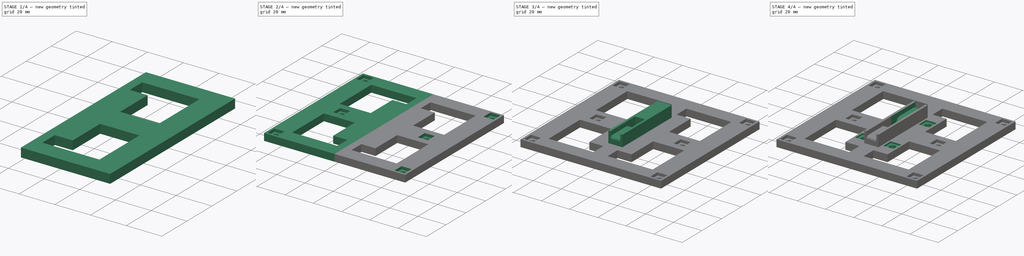
[diagram: build sequence overview — one tinted view per stage of 4, left to right]
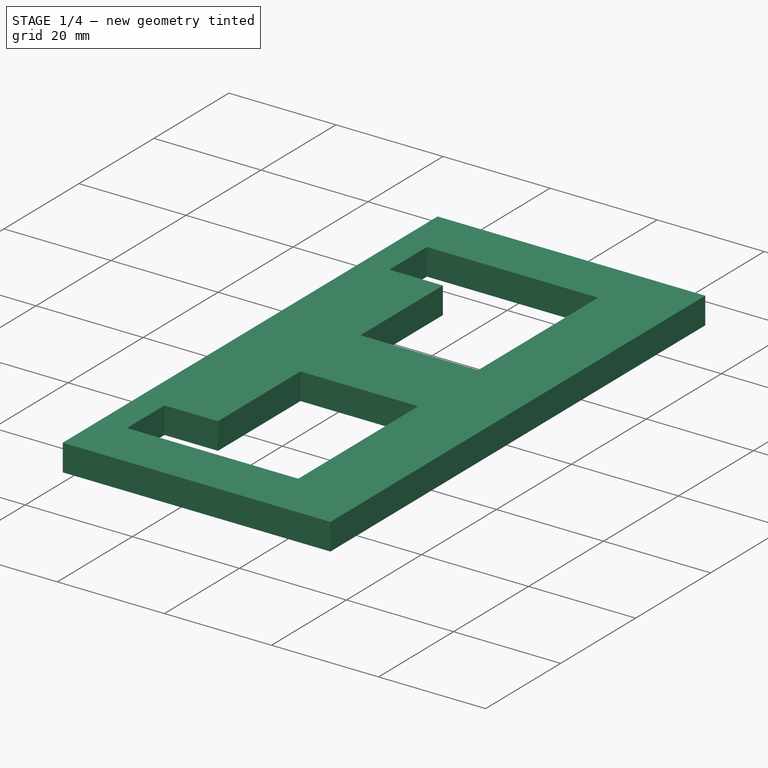
[diagram: stage 1 of 4 — iso view after this stage's code; geometry added in this stage tinted green]
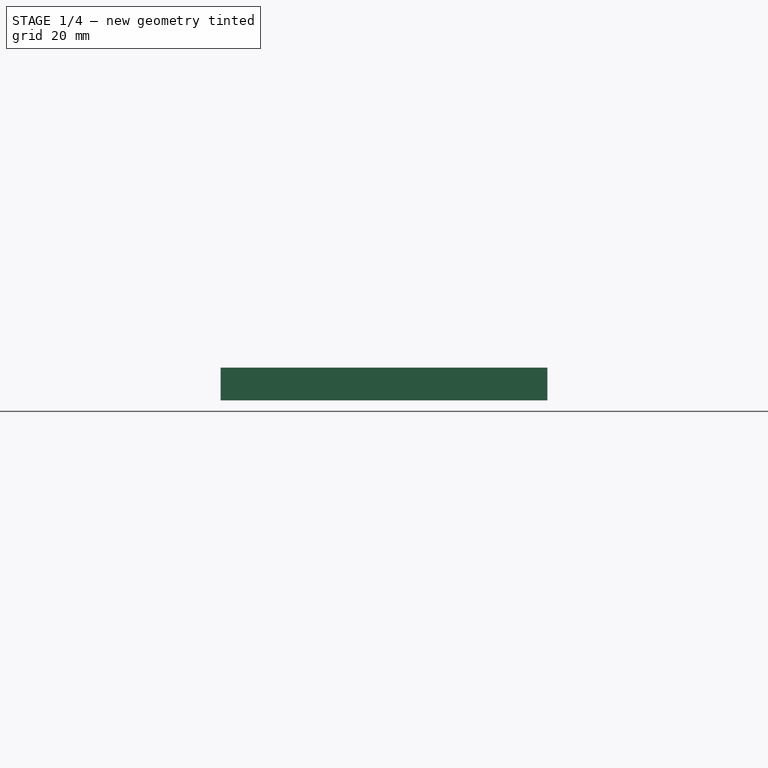
[diagram: stage 1 of 4 — front view after this stage's code; geometry added in this stage tinted green]
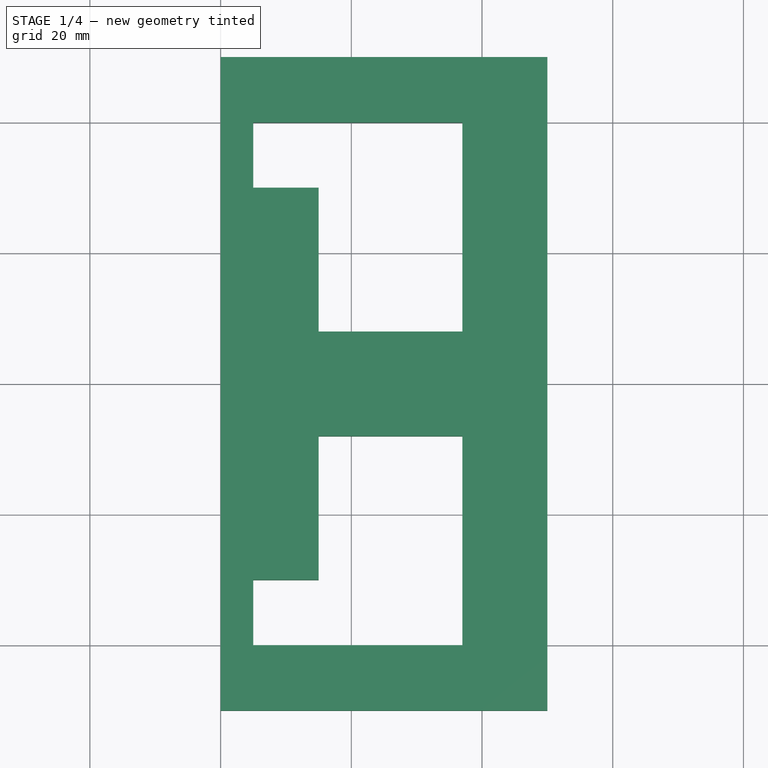
[diagram: stage 1 of 4 — top view after this stage's code; geometry added in this stage tinted green]
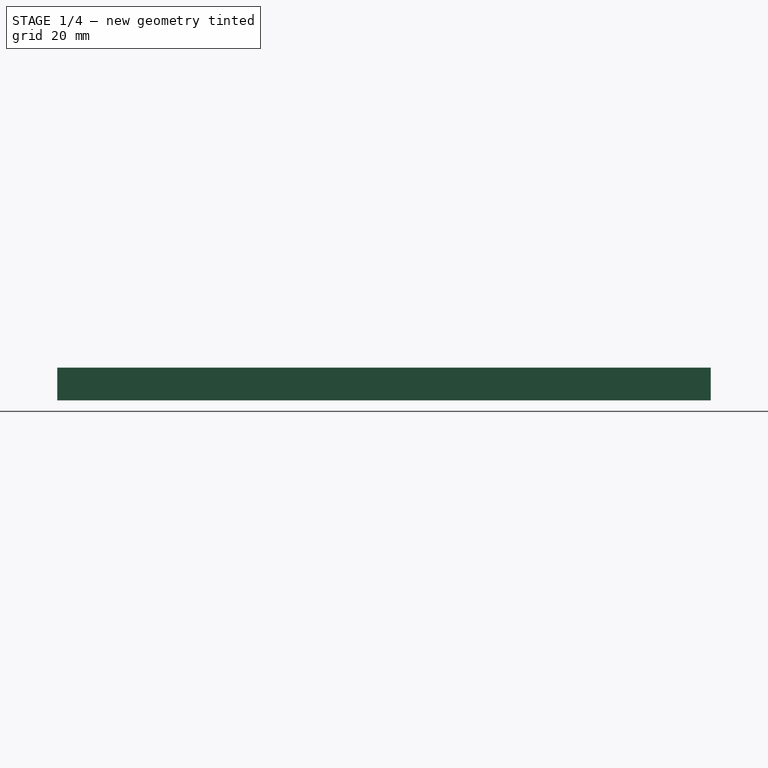
[diagram: stage 1 of 4 — right view after this stage's code; geometry added in this stage tinted green]
FCSTD DOCUMENT  (FreeCAD 2023.521R14555 (Git shallow))
Label: Y_Bed_Struct
License: All rights reserved
objects: Sketcher::SketchObject×8, PartDesign::Pocket×6, PartDesign::Mirrored×3, PartDesign::Pad×2, PartDesign::CoordinateSystem×1, Part::SubShapeBinder×1, PartDesign::Body×1, App::Part×1
note: 52 computed .brp shape members not serialized (recipe doc carries the construction recipe); baked Part::Feature solids carry a one-line shape summary decoded from their .brp

FEATURE [PartDesign::CoordinateSystem] LCS_0
  AttacherType = Attacher::AttachEngine3D
  AttachmentSupport = -> [X_Axis]
  InvalidShape = false
  MapMode = 2
  Support = -> [X_Axis]
  TreeRank = 3
  ValidateShape = false
FEATURE [Sketcher::SketchObject] Sketch
  ArcFitTolerance = 1e-06
  AttachmentSupport = -> [XZ_Plane001]
  ExternalBSplineMaxDegree = 5
  ExternalBSplineTolerance = 0.0001
  FullyConstrained = true
  InternalTolerance = 1e-06
  InvalidShape = false
  MakeInternals = false
  MapMode = 5
  Placement = pos=(0,0,0) rot=(1,0,0;1.5708rad)
  Support = -> [XZ_Plane001]
  TreeRank = 23
  ValidateShape = false
  sketch-geometry (4):
    g0: LineSegment StartX=0 StartY=0 StartZ=0 EndX=50 EndY=0 EndZ=0
    g1: LineSegment StartX=50 StartY=0 StartZ=0 EndX=50 EndY=5 EndZ=0
    g2: LineSegment StartX=50 StartY=5 StartZ=0 EndX=0 EndY=5 EndZ=0
    g3: LineSegment StartX=0 StartY=5 StartZ=0 EndX=0 EndY=0 EndZ=0
  constraints (11):
    c: Coincident(g0,g1)
    c: Coincident(g1,g2)
    c: Coincident(g2,g3)
    c: Coincident(g3,g0)
    c: Horizontal(g0)
    c: Horizontal(g2)
    c: Vertical(g1)
    c: Vertical(g3)
    c: Coincident(g0,g-1)
    c: DistanceY(g1,g1) = 5
    c: DistanceX(g0,g0) = 50
FEATURE [PartDesign::Pad] Pad
  AddSubType = 0
  AlongSketchNormal = false
  AutoTaperInnerAngle = true
  CheckUpToFaceLimits = true
  ClaimChildren = false
  Direction = (0,-1,2e-16)
  Fit = 0
  FitJoin = 0
  InnerFit = 0
  InnerFitJoin = 0
  InvalidShape = false
  Length = 100
  Length2 = 10
  Linearize = true
  Midplane = true
  NewSolid = false
  Profile = -> Sketch
  ReferenceAxis = -> Sketch [N_Axis]
  Suppress = false
  TaperInnerAngle = 0
  TaperInnerAngleRev = 0
  TreeRank = 24
  Type = 0
  ValidateShape = true
  _ProfileBasedVersion = 1
FEATURE [Sketcher::SketchObject] Sketch001
  ArcFitTolerance = 1e-06
  AttachmentSupport = -> [Pad]
  ExternalBSplineMaxDegree = 5
  ExternalBSplineTolerance = 0.0001
  FullyConstrained = true
  InternalTolerance = 1e-06
  InvalidShape = false
  MakeInternals = false
  MapMode = 5
  Placement = pos=(0,1.1e-15,5) rot=(0,0,1;0rad)
  Support = -> [Pad]
  TreeRank = 25
  ValidateShape = false
  sketch-geometry (6):
    g0: LineSegment StartX=5 StartY=30 StartZ=0 EndX=5 EndY=40 EndZ=0
    g1: LineSegment StartX=5 StartY=40 StartZ=0 EndX=37 EndY=40 EndZ=0
    g2: LineSegment StartX=37 StartY=40 StartZ=0 EndX=37 EndY=8 EndZ=0
    g3: LineSegment StartX=5 StartY=30 StartZ=0 EndX=15 EndY=30 EndZ=0
    g4: LineSegment StartX=15 StartY=30 StartZ=0 EndX=15 EndY=8 EndZ=0
    g5: LineSegment StartX=15 StartY=8 StartZ=0 EndX=37 EndY=8 EndZ=0
  constraints (18):
    c: Coincident(g0,g1)
    c: Coincident(g1,g2)
    c: Horizontal(g1)
    c: Vertical(g0)
    c: Vertical(g2)
    c: DistanceY(g-1,g0) = 30
    c: Coincident(g3,g0)
    c: Horizontal(g3)
    c: Vertical(g4)
    c: Coincident(g5,g4)
    c: Horizontal(g5)
    c: Coincident(g2,g5)
    c: Coincident(g3,g4)
    c: DistanceX(g-1,g3) = 15
    c: DistanceY(g-1,g4) = 8
    c: DistanceY(g0,g0) = 10
    c: DistanceX(g3,g3) = 10
    c: DistanceX(g1,g1) = 32
FEATURE [PartDesign::Pocket] Pocket
  AddSubType = 1
  AlongSketchNormal = false
  AutoTaperInnerAngle = true
  BaseFeature = -> Pad
  CheckUpToFaceLimits = true
  ClaimChildren = false
  Direction = (0,-2e-16,-1)
  Fit = 0
  FitJoin = 0
  InnerFit = 0
  InnerFitJoin = 0
  InvalidShape = false
  Length = 5
  Length2 = 10
  Linearize = true
  Midplane = true
  NewSolid = false
  Profile = -> Sketch001
  ReferenceAxis = -> Sketch001 [N_Axis]
  Suppress = false
  TaperInnerAngle = 0
  TaperInnerAngleRev = 0
  TreeRank = 26
  Type = 1
  ValidateShape = true
  _ProfileBasedVersion = 1
  _Version = 1
FEATURE [PartDesign::Mirrored] Mirrored
  AddSubType = 0
  BaseFeature = -> Pocket
  CopyShape = false
  InvalidShape = false
  MirrorPlane = -> XZ_Plane001
  NewSolid = false
  OriginalSubs = -> [Pocket]
  Originals = -> [Pocket]
  ParallelTransform = true
  SubTransform = true
  Suppress = false
  TreeRank = 27
  ValidateShape = true
  _Version = 3
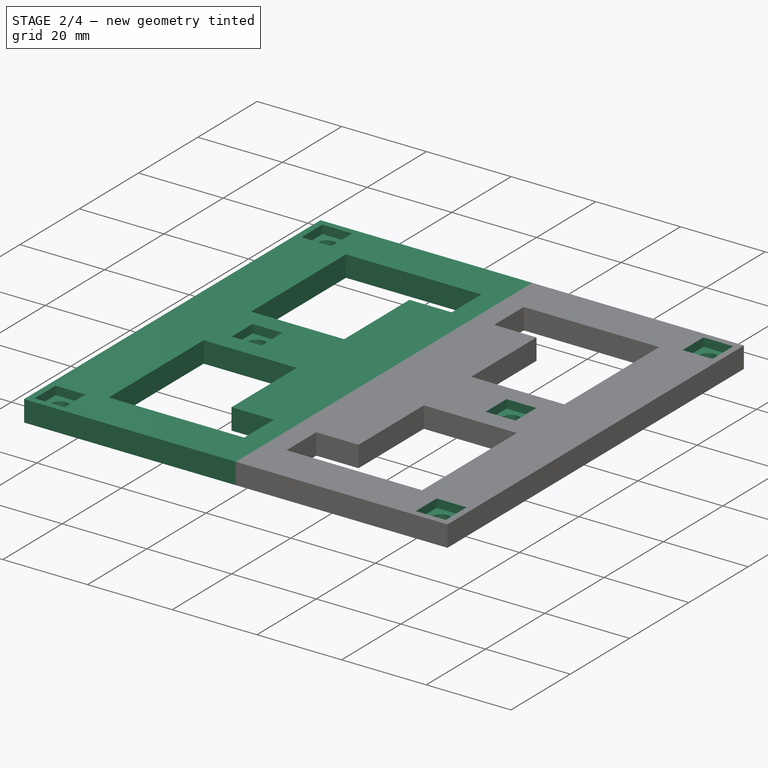
[diagram: stage 2 of 4 — iso view after this stage's code; geometry added in this stage tinted green]
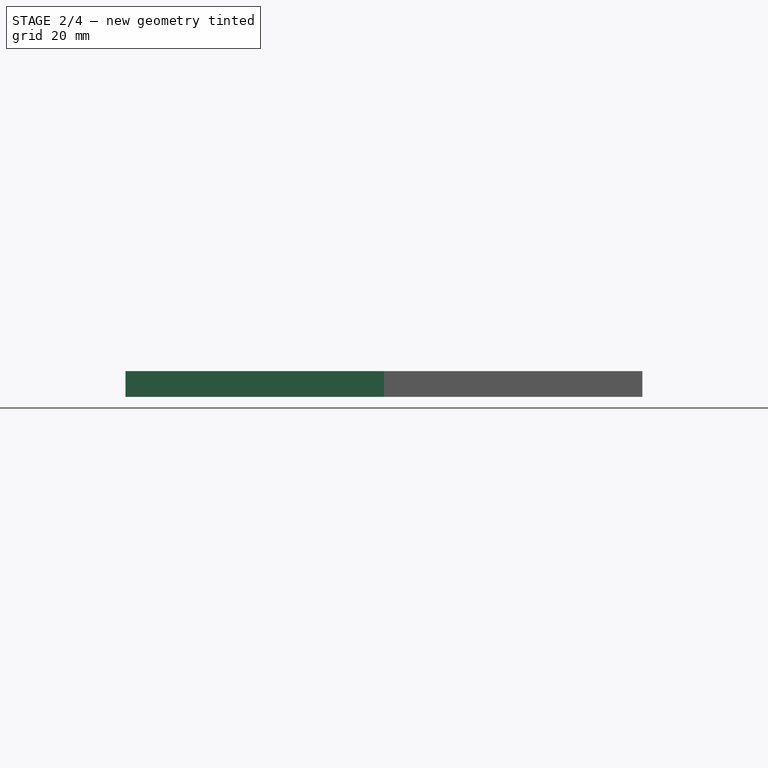
[diagram: stage 2 of 4 — front view after this stage's code; geometry added in this stage tinted green]
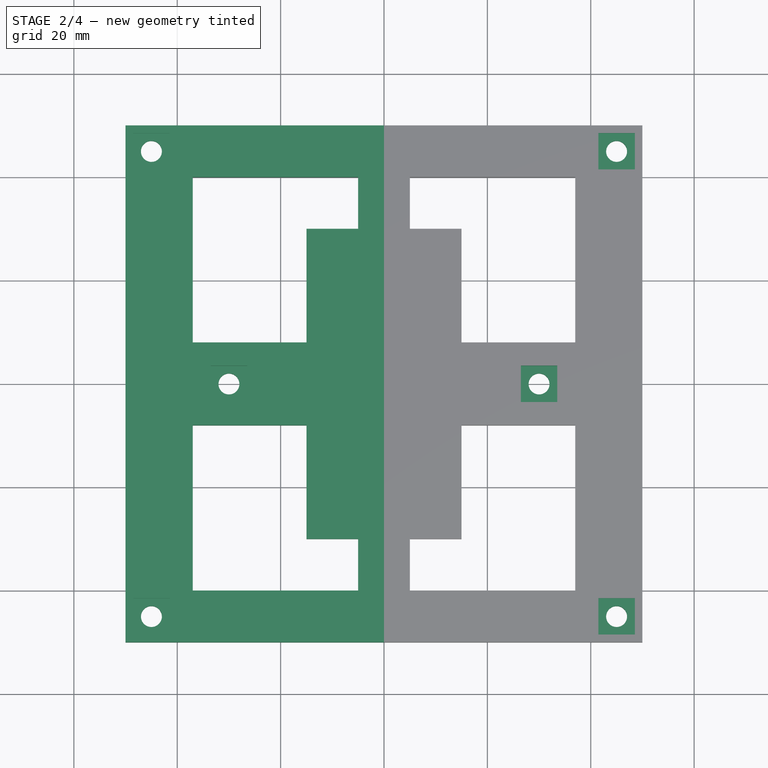
[diagram: stage 2 of 4 — top view after this stage's code; geometry added in this stage tinted green]
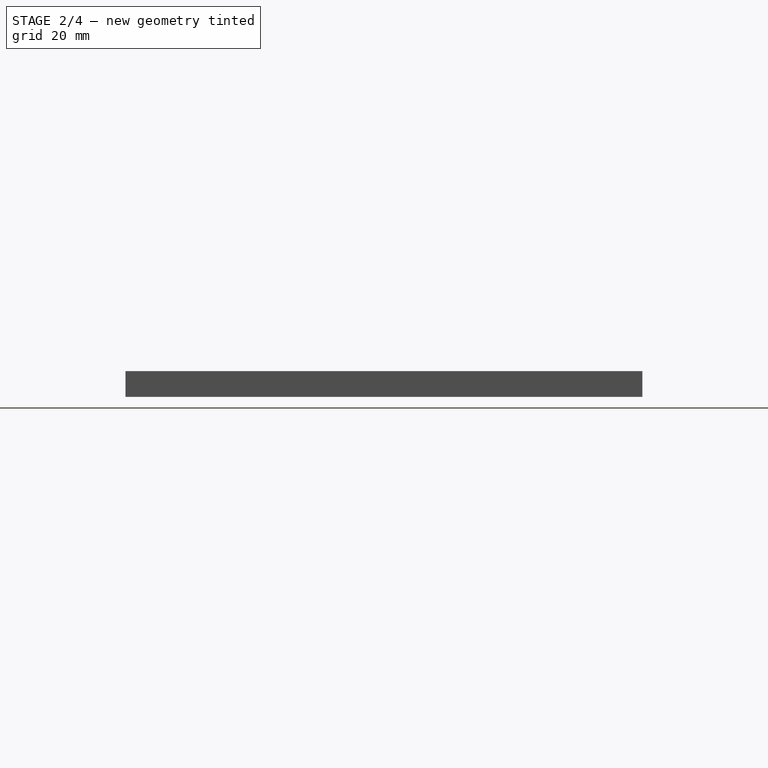
[diagram: stage 2 of 4 — right view after this stage's code; geometry added in this stage tinted green]
FEATURE [Sketcher::SketchObject] Sketch002
  ArcFitTolerance = 1e-06
  AttachmentSupport = -> [Mirrored]
  ExternalBSplineMaxDegree = 5
  ExternalBSplineTolerance = 0.0001
  FullyConstrained = true
  InternalTolerance = 1e-06
  InvalidShape = false
  MakeInternals = false
  MapMode = 5
  Placement = pos=(0,1.1e-15,5) rot=(0,0,1;0rad)
  Support = -> [Mirrored]
  TreeRank = 28
  ValidateShape = false
  sketch-geometry (3):
    g0: Circle CenterX=45 CenterY=45 CenterZ=0 NormalX=0 NormalY=0 NormalZ=1 AngleXU=0 Radius=2.025
    g1: Circle CenterX=30 CenterY=0 CenterZ=0 NormalX=0 NormalY=0 NormalZ=1 AngleXU=0 Radius=2.025
    g2: Circle CenterX=45 CenterY=-45 CenterZ=0 NormalX=0 NormalY=0 NormalZ=1 AngleXU=0 Radius=2.025
  constraints (8):
    c: Symmetric(g2,g0,g-1)
    c: DistanceX(g-1,g2) = 45
    c: DistanceX(g-1,g1) = 30
    c: Horizontal(g1,g-1)
    c: Equal(g0,g1)
    c: Equal(g1,g2)
    c: Diameter(g1) = 4.05
    c: DistanceY(g2,g0) = 90
FEATURE [PartDesign::Pocket] Pocket001
  AddSubType = 1
  AlongSketchNormal = false
  AutoTaperInnerAngle = true
  BaseFeature = -> Mirrored
  CheckUpToFaceLimits = true
  ClaimChildren = false
  Direction = (0,-2e-16,-1)
  Fit = 0
  FitJoin = 0
  InnerFit = 0
  InnerFitJoin = 0
  InvalidShape = false
  Length = 5
  Length2 = 10
  Linearize = true
  Midplane = true
  NewSolid = false
  Profile = -> Sketch002
  ReferenceAxis = -> Sketch002 [N_Axis]
  Suppress = false
  TaperInnerAngle = 0
  TaperInnerAngleRev = 0
  TreeRank = 29
  Type = 1
  ValidateShape = true
  _ProfileBasedVersion = 1
  _Version = 1
FEATURE [Sketcher::SketchObject] Sketch004
  ArcFitTolerance = 1e-06
  AttachmentSupport = -> [Pocket001]
  ExternalBSplineMaxDegree = 5
  ExternalBSplineTolerance = 0.0001
  ExternalGeometry = -> [Pocket001]
  FullyConstrained = true
  InternalTolerance = 1e-06
  InvalidShape = false
  MakeInternals = false
  MapMode = 5
  Placement = pos=(0,1.1e-15,5) rot=(0,0,1;0rad)
  Support = -> [Pocket001]
  TreeRank = 33
  ValidateShape = false
  sketch-geometry (15):
    g0: LineSegment StartX=26.475 StartY=-3.525 StartZ=0 EndX=26.475 EndY=3.525 EndZ=0
    g1: LineSegment StartX=26.475 StartY=3.525 StartZ=0 EndX=33.525 EndY=3.525 EndZ=0
    g2: LineSegment StartX=33.525 StartY=3.525 StartZ=0 EndX=33.525 EndY=-3.525 EndZ=0
    g3: LineSegment StartX=33.525 StartY=-3.525 StartZ=0 EndX=26.475 EndY=-3.525 EndZ=0
    g4: GeomPoint [constr] X=30 Y=0 Z=0
    g5: LineSegment StartX=41.475 StartY=-48.525 StartZ=0 EndX=41.475 EndY=-41.475 EndZ=0
    g6: LineSegment StartX=41.475 StartY=-41.475 StartZ=0 EndX=48.525 EndY=-41.475 EndZ=0
    g7: LineSegment StartX=48.525 StartY=-41.475 StartZ=0 EndX=48.525 EndY=-48.525 EndZ=0
    g8: LineSegment StartX=48.525 StartY=-48.525 StartZ=0 EndX=41.475 EndY=-48.525 EndZ=0
    g9: GeomPoint [constr] X=45 Y=-45 Z=0
    g10: LineSegment StartX=41.475 StartY=48.525 StartZ=0 EndX=41.475 EndY=41.475 EndZ=0
    g11: LineSegment StartX=41.475 StartY=41.475 StartZ=0 EndX=48.525 EndY=41.475 EndZ=0
    g12: LineSegment StartX=48.525 StartY=41.475 StartZ=0 EndX=48.525 EndY=48.525 EndZ=0
    g13: LineSegment StartX=48.525 StartY=48.525 StartZ=0 EndX=41.475 EndY=48.525 EndZ=0
    g14: GeomPoint [constr] X=45 Y=45 Z=0
  constraints (36):
    c: Coincident(g0,g1)
    c: Coincident(g1,g2)
    c: Coincident(g2,g3)
    c: Coincident(g3,g0)
    c: Horizontal(g1)
    c: Horizontal(g3)
    c: Vertical(g0)
    c: Vertical(g2)
    c: Symmetric(g1,g0,g4)
    c: Coincident(g5,g6)
    c: Coincident(g6,g7)
    c: Coincident(g7,g8)
    c: Coincident(g8,g5)
    c: Horizontal(g6)
    c: Horizontal(g8)
    c: Vertical(g5)
    c: Vertical(g7)
    c: Symmetric(g6,g5,g9)
    c: Coincident(g10,g11)
    c: Coincident(g11,g12)
    c: Coincident(g12,g13)
    c: Coincident(g13,g10)
    c: Horizontal(g11)
    c: Horizontal(g13)
    c: Vertical(g10)
    c: Vertical(g12)
    c: Symmetric(g11,g10,g14)
    c: Coincident(g9,g-5)
    c: Coincident(g4,g-4)
    c: Coincident(g14,g-3)
    c: Equal(g11,g12)
    c: Equal(g12,g2)
    c: Equal(g2,g3)
    c: Equal(g3,g7)
    c: Equal(g7,g6)
    c: DistanceX(g6,g6) = 7.05
FEATURE [PartDesign::Pocket] Pocket003
  AddSubType = 1
  AlongSketchNormal = false
  AutoTaperInnerAngle = true
  BaseFeature = -> Pocket001
  CheckUpToFaceLimits = true
  ClaimChildren = false
  Direction = (0,-2e-16,-1)
  Fit = 0
  FitJoin = 0
  InnerFit = 0
  InnerFitJoin = 0
  InvalidShape = false
  Length = 2
  Length2 = 10
  Linearize = true
  NewSolid = false
  Profile = -> Sketch004
  ReferenceAxis = -> Sketch004 [N_Axis]
  Suppress = false
  TaperInnerAngle = 0
  TaperInnerAngleRev = 0
  TreeRank = 34
  Type = 0
  ValidateShape = true
  _ProfileBasedVersion = 1
  _Version = 1
FEATURE [PartDesign::Mirrored] Mirrored001
  AddSubType = 0
  BaseFeature = -> Pocket003
  CopyShape = false
  InvalidShape = false
  MirrorPlane = -> YZ_Plane001
  NewSolid = false
  OriginalSubs = -> [Pocket001,Mirrored,Pocket,Pad,Pocket003]
  Originals = -> [Pocket001,Mirrored,Pocket,Pad,Pocket003]
  ParallelTransform = true
  SubTransform = true
  Suppress = false
  TreeRank = 30
  ValidateShape = true
  _Version = 3
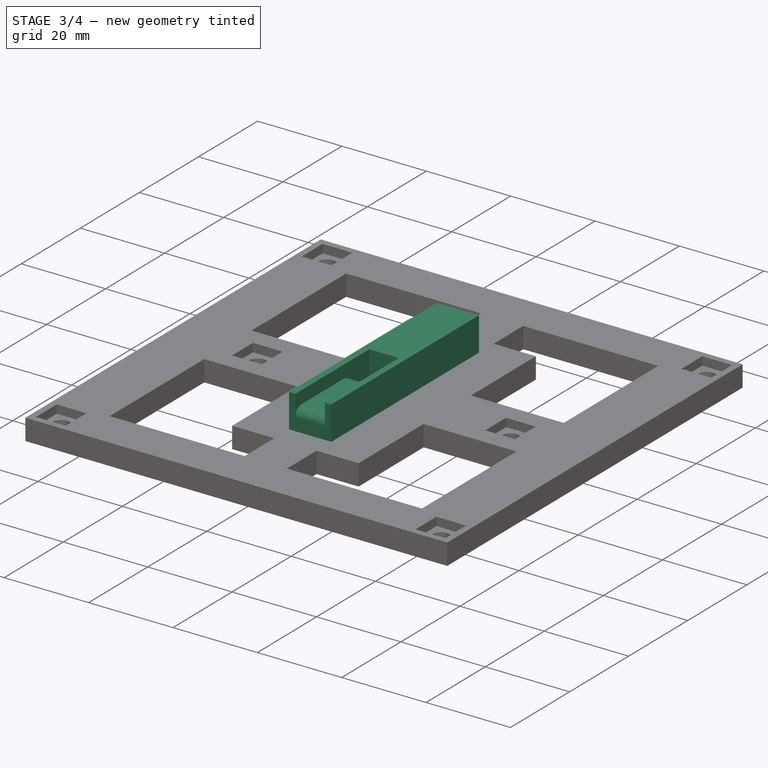
[diagram: stage 3 of 4 — iso view after this stage's code; geometry added in this stage tinted green]
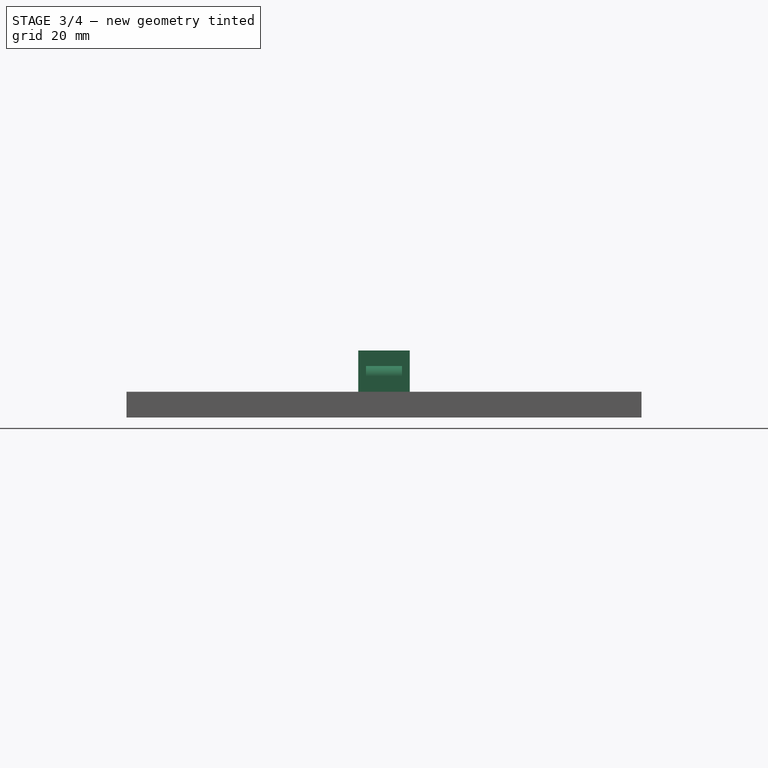
[diagram: stage 3 of 4 — front view after this stage's code; geometry added in this stage tinted green]
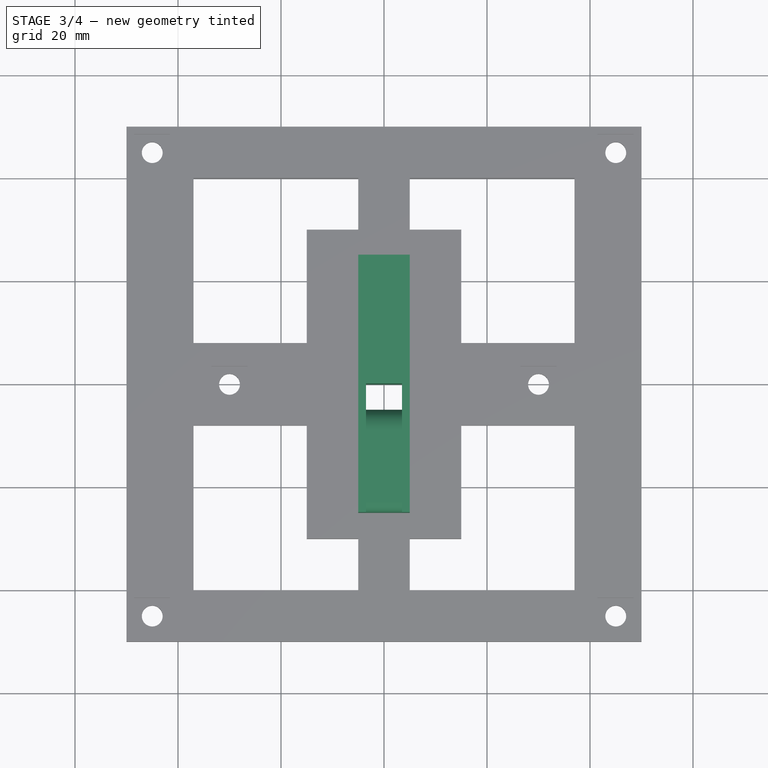
[diagram: stage 3 of 4 — top view after this stage's code; geometry added in this stage tinted green]
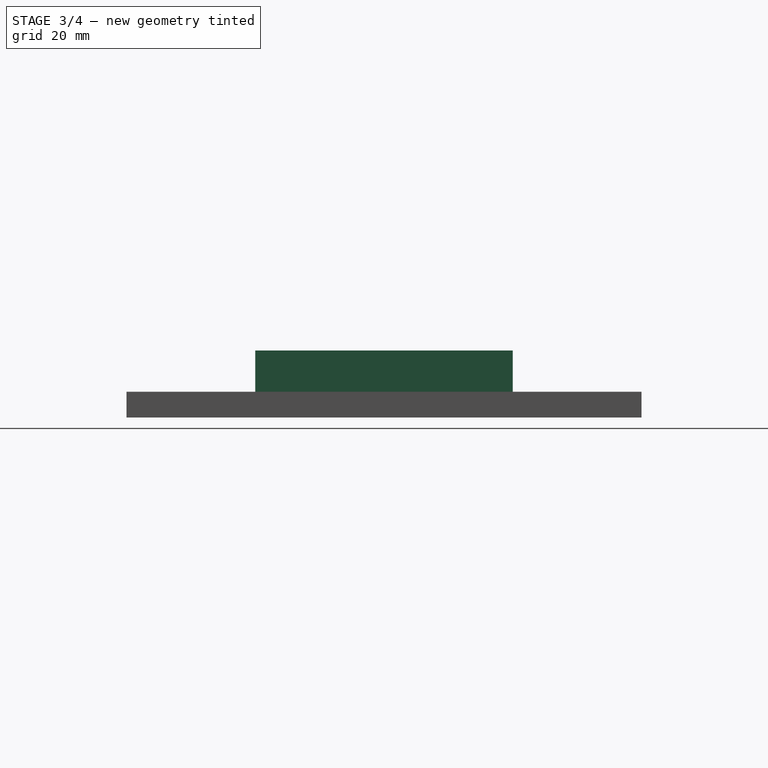
[diagram: stage 3 of 4 — right view after this stage's code; geometry added in this stage tinted green]
FEATURE [Sketcher::SketchObject] Sketch005
  ArcFitTolerance = 1e-06
  AttachmentSupport = -> [Mirrored001]
  ExternalBSplineMaxDegree = 5
  ExternalBSplineTolerance = 0.0001
  FullyConstrained = true
  InternalTolerance = 1e-06
  InvalidShape = false
  MakeInternals = false
  MapMode = 5
  Placement = pos=(-1.1e-15,1.1e-15,5) rot=(0,0,1;0rad)
  Support = -> [Mirrored001]
  TreeRank = 35
  ValidateShape = false
  sketch-geometry (5):
    g0: LineSegment StartX=-5 StartY=-25 StartZ=0 EndX=-5 EndY=25 EndZ=0
    g1: LineSegment StartX=-5 StartY=25 StartZ=0 EndX=5 EndY=25 EndZ=0
    g2: LineSegment StartX=5 StartY=25 StartZ=0 EndX=5 EndY=-25 EndZ=0
    g3: LineSegment StartX=5 StartY=-25 StartZ=0 EndX=-5 EndY=-25 EndZ=0
    g4: GeomPoint [constr] X=0 Y=0 Z=0
  constraints (12):
    c: Coincident(g0,g1)
    c: Coincident(g1,g2)
    c: Coincident(g2,g3)
    c: Coincident(g3,g0)
    c: Horizontal(g1)
    c: Horizontal(g3)
    c: Vertical(g0)
    c: Vertical(g2)
    c: Symmetric(g1,g0,g4)
    c: Coincident(g4,g-1)
    c: DistanceX(g1,g1) = 10
    c: DistanceY(g2,g2) = 50
FEATURE [PartDesign::Pad] Pad001
  AddSubType = 0
  AlongSketchNormal = false
  AutoTaperInnerAngle = true
  BaseFeature = -> Mirrored001
  CheckUpToFaceLimits = true
  ClaimChildren = false
  Direction = (-2e-16,2e-16,1)
  Fit = 0
  FitJoin = 0
  InnerFit = 0
  InnerFitJoin = 0
  InvalidShape = false
  Length = 8
  Length2 = 10
  Linearize = true
  NewSolid = false
  Profile = -> Sketch005
  ReferenceAxis = -> Sketch005 [N_Axis]
  Suppress = false
  TaperInnerAngle = 0
  TaperInnerAngleRev = 0
  TreeRank = 36
  Type = 0
  ValidateShape = true
  _ProfileBasedVersion = 1
FEATURE [Part::SubShapeBinder] Import  label="Import(YZ_Plane)"
  BindCopyOnChange = 0
  BindMode = 0
  ClaimChildren = false
  Context = -> Struct [Body.Import.]
  EdgeTolerance = 1e-06
  FillStyle = 0
  Fuse = false
  InvalidShape = false
  MakeFace = false
  MergeEdges = true
  OffsetFill = false
  OffsetIntersection = false
  OffsetJoinType = 0
  OffsetOpenResult = false
  Outline = false
  PartialLoad = false
  Relative = true
  SplitEdges = false
  Support = -> [YZ_Plane]
  TightBound = false
  TreeRank = 37
  ValidateShape = false
  _Version = 8
FEATURE [Sketcher::SketchObject] Sketch006
  ArcFitTolerance = 1e-06
  AttachmentSupport = -> [Import]
  ExternalBSplineMaxDegree = 5
  ExternalBSplineTolerance = 0.0001
  ExternalGeometry = -> [Pad001]
  FullyConstrained = true
  InternalTolerance = 1e-06
  InvalidShape = false
  MakeInternals = false
  MapMode = 5
  Placement = pos=(0,0,0) rot=(0.57735,0.57735,0.57735;2.0944rad)
  Support = -> [Import]
  TreeRank = 38
  ValidateShape = false
  sketch-geometry (14):
    g0: LineSegment StartX=-23 StartY=10 StartZ=0 EndX=-9 EndY=10 EndZ=0
    g1: LineSegment StartX=-25 StartY=13 StartZ=0 EndX=0 EndY=13 EndZ=0
    g2: LineSegment StartX=0 StartY=13 StartZ=0 EndX=0 EndY=-0.5 EndZ=0
    g3: LineSegment StartX=-5 StartY=4 StartZ=0 EndX=-5 EndY=6 EndZ=0
    g4: LineSegment StartX=-9 StartY=-0.5 StartZ=0 EndX=-9 EndY=1.8e-15 EndZ=0
    g5: ArcOfCircle CenterX=-9 CenterY=4 CenterZ=0 NormalX=0 NormalY=0 NormalZ=1 AngleXU=0 Radius=4 StartAngle=4.71239 EndAngle=6.28319
    g6: ArcOfCircle CenterX=-9 CenterY=6 CenterZ=0 NormalX=0 NormalY=0 NormalZ=1 AngleXU=0 Radius=4 StartAngle=0 EndAngle=1.5708
    g7: GeomPoint [constr] X=-5 Y=10 Z=0
    g8: LineSegment StartX=-9 StartY=-0.5 StartZ=0 EndX=0 EndY=-0.5 EndZ=0
    g9: ArcOfCircle CenterX=-23 CenterY=8 CenterZ=0 NormalX=0 NormalY=0 NormalZ=1 AngleXU=0 Radius=2 StartAngle=1.5708 EndAngle=3.14159
    g10: GeomPoint [constr] X=-25 Y=10 Z=0
    g11: LineSegment StartX=-25 StartY=8 StartZ=0 EndX=-26 EndY=8 EndZ=0
    g12: LineSegment StartX=-26 StartY=8 StartZ=0 EndX=-26 EndY=13 EndZ=0
    g13: LineSegment StartX=-26 StartY=13 StartZ=0 EndX=-25 EndY=13 EndZ=0
  constraints (38):
    c: Horizontal(g0)
    c: PointOnObject(g1,g-2)
    c: Horizontal(g1)
    c: Coincident(g2,g1)
    c: Vertical(g3)
    c: Vertical(g4)
    c: Tangent(g3,g5) = -1.5708
    c: PointOnObject(g7,g3)
    c: PointOnObject(g7,g0)
    c: Tangent(g3,g6) = -1.5708
    c: Tangent(g0,g6) = 1.5708
    c: Vertical(g5,g6)
    c: DistanceY(g4,g4) = 0.5
    c: PointOnObject(g4,g-4)
    c: Coincident(g8,g4)
    c: PointOnObject(g8,g-2)
    c: Horizontal(g8)
    c: DistanceX(g3,g2) = 5
    c: Coincident(g2,g8)
    c: Radius(g6) = 4
    c: PointOnObject(g10,g-3)
    c: PointOnObject(g10,g0)
    c: Tangent(g0,g9) = 1.5708
    c: DistanceY(g-3,g10) = 5
    c: Coincident(g11,g9)
    c: Horizontal(g11)
    c: Coincident(g12,g11)
    c: Vertical(g12)
    c: Coincident(g13,g12)
    c: Coincident(g13,g1)
    c: Horizontal(g13)
    c: Coincident(g1,g-3)
    c: Horizontal(g9,g9)
    c: Vertical(g9,g-3)
    c: Radius(g9) = 2
    c: DistanceX(g13,g13) = 1
    c: Coincident(g4,g5)
    c: Vertical(g4,g5)
FEATURE [PartDesign::Pocket] Pocket004
  AddSubType = 1
  AlongSketchNormal = false
  AutoTaperInnerAngle = true
  BaseFeature = -> Pad001
  CheckUpToFaceLimits = true
  ClaimChildren = false
  Direction = (-1,0,0)
  Fit = 0
  FitJoin = 0
  InnerFit = 0
  InnerFitJoin = 0
  InvalidShape = false
  Length = 7
  Length2 = 10
  Linearize = true
  Midplane = true
  NewSolid = false
  Profile = -> Sketch006
  ReferenceAxis = -> Sketch006 [N_Axis]
  Suppress = false
  TaperInnerAngle = 0
  TaperInnerAngleRev = 0
  TreeRank = 39
  Type = 0
  ValidateShape = true
  _ProfileBasedVersion = 1
  _Version = 1
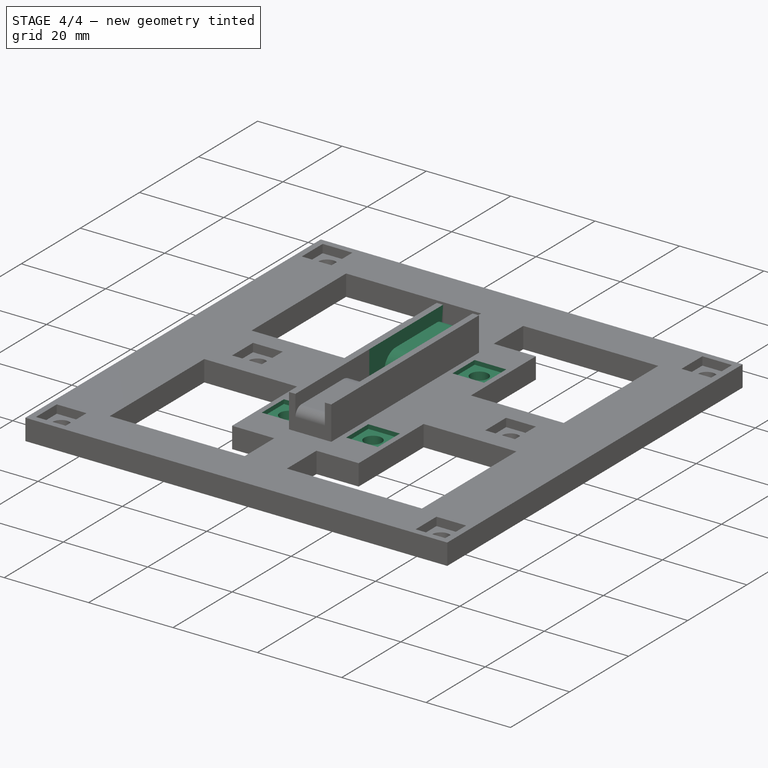
[diagram: stage 4 of 4 — iso view after this stage's code; geometry added in this stage tinted green]
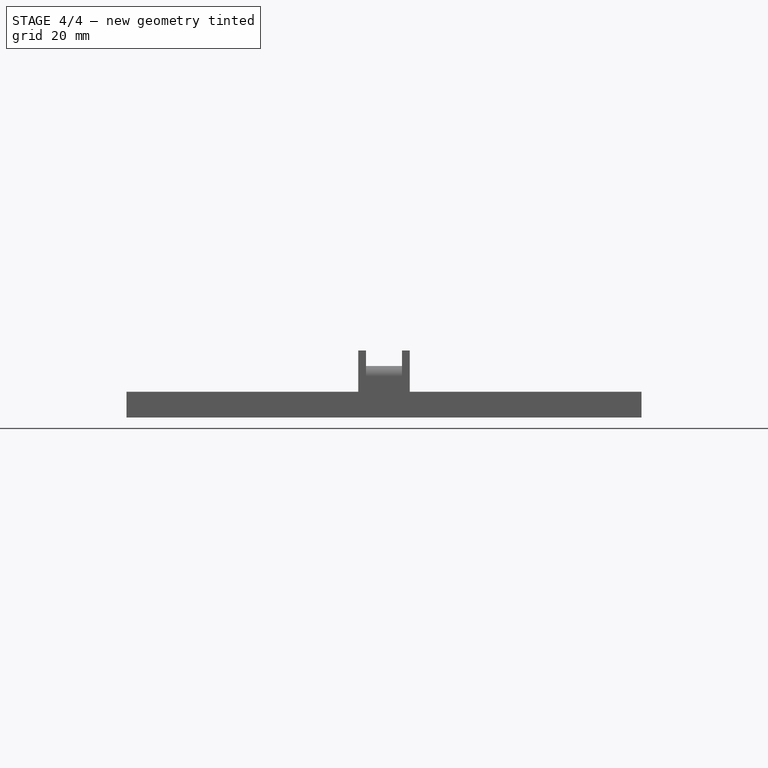
[diagram: stage 4 of 4 — front view after this stage's code; geometry added in this stage tinted green]
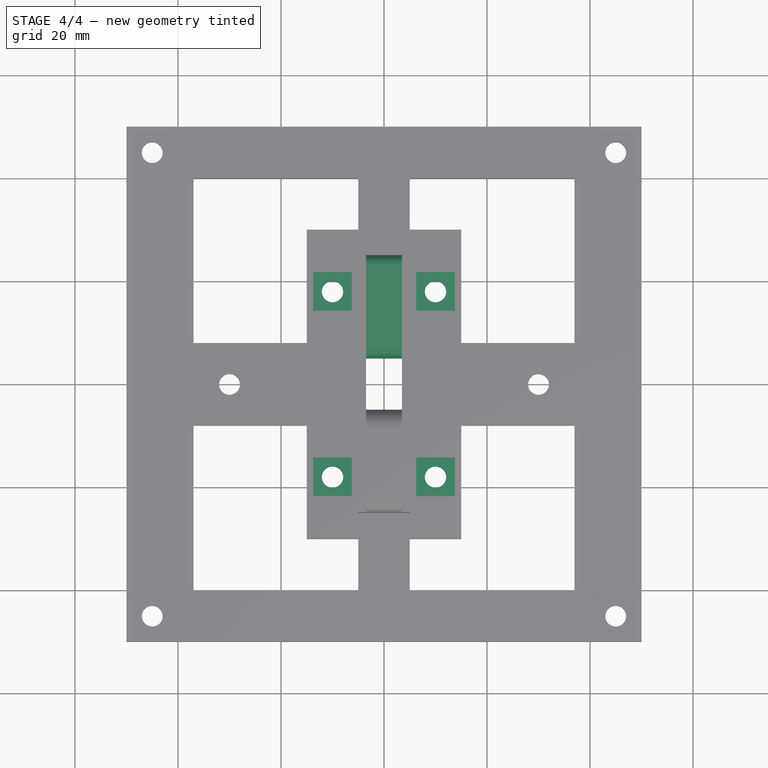
[diagram: stage 4 of 4 — top view after this stage's code; geometry added in this stage tinted green]
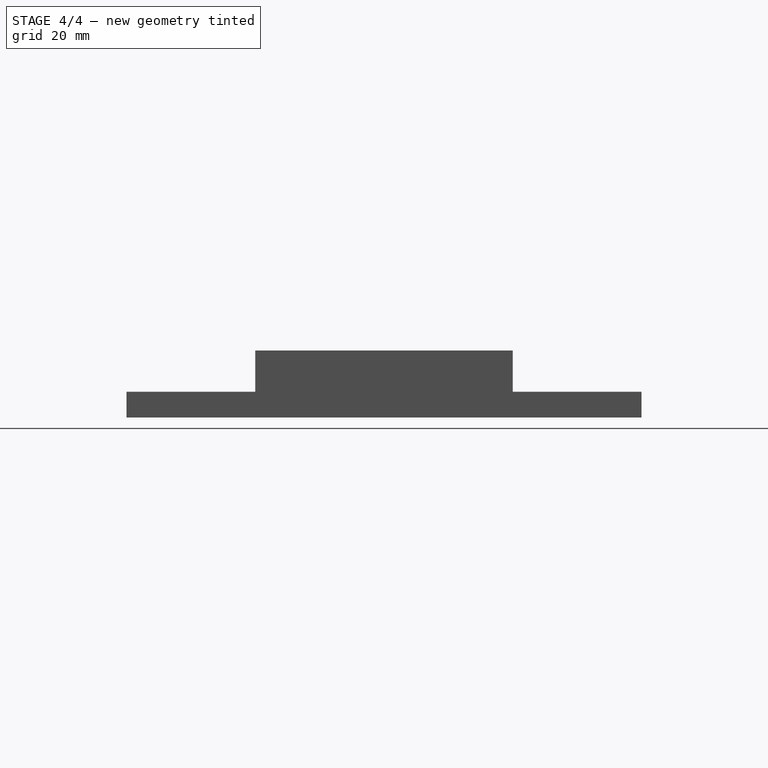
[diagram: stage 4 of 4 — right view after this stage's code; geometry added in this stage tinted green]
FEATURE [Sketcher::SketchObject] Sketch007
  ArcFitTolerance = 1e-06
  AttachmentSupport = -> [Pocket004]
  ExternalBSplineMaxDegree = 5
  ExternalBSplineTolerance = 0.0001
  FullyConstrained = true
  InternalTolerance = 1e-06
  InvalidShape = false
  MakeInternals = false
  MapMode = 5
  Placement = pos=(0,0,-1e-16) rot=(1,0,0;3.14159rad)
  Support = -> [Pocket004]
  TreeRank = 42
  ValidateShape = false
  sketch-geometry (2):
    g0: Circle CenterX=10 CenterY=18 CenterZ=0 NormalX=0 NormalY=0 NormalZ=1 AngleXU=0 Radius=2.075
    g1: Circle CenterX=-10 CenterY=18 CenterZ=0 NormalX=0 NormalY=0 NormalZ=1 AngleXU=0 Radius=2.075
  constraints (5):
    c: Equal(g1,g0)
    c: Diameter(g1) = 4.15
    c: Symmetric(g1,g0,g-2)
    c: DistanceY(g-1,g1) = 18
    c: DistanceX(g1,g-1) = 10
FEATURE [PartDesign::Pocket] Pocket005
  AddSubType = 1
  AlongSketchNormal = false
  AutoTaperInnerAngle = true
  BaseFeature = -> Pocket004
  CheckUpToFaceLimits = true
  ClaimChildren = false
  Direction = (0,2e-16,1)
  Fit = 0
  FitJoin = 0
  InnerFit = 0
  InnerFitJoin = 0
  InvalidShape = false
  Length = 5
  Length2 = 10
  Linearize = true
  Midplane = true
  NewSolid = false
  Profile = -> Sketch007
  ReferenceAxis = -> Sketch007 [N_Axis]
  Suppress = false
  TaperInnerAngle = 0
  TaperInnerAngleRev = 0
  TreeRank = 43
  Type = 1
  ValidateShape = true
  _ProfileBasedVersion = 1
  _Version = 1
FEATURE [Sketcher::SketchObject] Sketch008
  ArcFitTolerance = 1e-06
  AttachmentSupport = -> [Pocket005]
  ExternalBSplineMaxDegree = 5
  ExternalBSplineTolerance = 0.0001
  ExternalGeometry = -> [Pocket005]
  FullyConstrained = true
  InternalTolerance = 1e-06
  InvalidShape = false
  MakeInternals = false
  MapMode = 5
  Placement = pos=(0,1.1e-15,5) rot=(0,0,1;0rad)
  Support = -> [Pocket005]
  TreeRank = 44
  ValidateShape = false
  sketch-geometry (10):
    g0: LineSegment StartX=6.25 StartY=-21.75 StartZ=0 EndX=6.25 EndY=-14.25 EndZ=0
    g1: LineSegment StartX=6.25 StartY=-14.25 StartZ=0 EndX=13.75 EndY=-14.25 EndZ=0
    g2: LineSegment StartX=13.75 StartY=-14.25 StartZ=0 EndX=13.75 EndY=-21.75 EndZ=0
    g3: LineSegment StartX=13.75 StartY=-21.75 StartZ=0 EndX=6.25 EndY=-21.75 EndZ=0
    g4: GeomPoint [constr] X=10 Y=-18 Z=0
    g5: LineSegment StartX=-13.75 StartY=-21.75 StartZ=0 EndX=-13.75 EndY=-14.25 EndZ=0
    g6: LineSegment StartX=-13.75 StartY=-14.25 StartZ=0 EndX=-6.25 EndY=-14.25 EndZ=0
    g7: LineSegment StartX=-6.25 StartY=-14.25 StartZ=0 EndX=-6.25 EndY=-21.75 EndZ=0
    g8: LineSegment StartX=-6.25 StartY=-21.75 StartZ=0 EndX=-13.75 EndY=-21.75 EndZ=0
    g9: GeomPoint [constr] X=-10 Y=-18 Z=0
  constraints (24):
    c: Coincident(g0,g1)
    c: Coincident(g1,g2)
    c: Coincident(g2,g3)
    c: Coincident(g3,g0)
    c: Horizontal(g1)
    c: Horizontal(g3)
    c: Vertical(g0)
    c: Vertical(g2)
    c: Symmetric(g1,g0,g4)
    c: Equal(g1,g2)
    c: DistanceX(g1,g1) = 7.5
    c: Coincident(g4,g-3)
    c: Coincident(g5,g6)
    c: Coincident(g6,g7)
    c: Coincident(g7,g8)
    c: Coincident(g8,g5)
    c: Horizontal(g6)
    c: Horizontal(g8)
    c: Vertical(g5)
    c: Vertical(g7)
    c: Symmetric(g6,g5,g9)
    c: Symmetric(g9,g-3,g-2)
    c: Equal(g7,g8)
    c: Equal(g8,g0)
FEATURE [PartDesign::Pocket] Pocket006
  AddSubType = 1
  AlongSketchNormal = false
  AutoTaperInnerAngle = true
  BaseFeature = -> Pocket005
  CheckUpToFaceLimits = true
  ClaimChildren = false
  Direction = (0,-2e-16,-1)
  Fit = 0
  FitJoin = 0
  InnerFit = 0
  InnerFitJoin = 0
  InvalidShape = false
  Length = 1
  Length2 = 10
  Linearize = true
  NewSolid = false
  Profile = -> Sketch008
  ReferenceAxis = -> Sketch008 [N_Axis]
  Suppress = false
  TaperInnerAngle = 0
  TaperInnerAngleRev = 0
  TreeRank = 45
  Type = 0
  ValidateShape = true
  _ProfileBasedVersion = 1
  _Version = 1
FEATURE [PartDesign::Mirrored] Mirrored002
  AddSubType = 0
  BaseFeature = -> Pocket006
  CopyShape = false
  InvalidShape = false
  MirrorPlane = -> XZ_Plane001
  NewSolid = false
  OriginalSubs = -> [Pocket005,Pocket006,Pocket004]
  Originals = -> [Pocket005,Pocket006,Pocket004]
  ParallelTransform = true
  SubTransform = true
  Suppress = false
  TreeRank = 46
  ValidateShape = true
  _Version = 3
FEATURE [PartDesign::Body] Body
  AutoGroupSolids = false
  ClaimAllChildren = false
  ExportMode = 0
  Group = -> [Sketch,Pad,Sketch001,Pocket,Mirrored,Sketch002,Pocket001,Sketch004,Pocket003,Mirrored001,Sketch005,Pad001,Import,Sketch006,Pocket004,Sketch007,Pocket005,Pocket006,Sketch008,Mirrored002]
  InvalidShape = false
  Origin = -> Origin001
  Tip = -> Mirrored002
  TreeRank = 22
  ValidateShape = false
  _ExportChildren = -> [Pad,Pocket,Mirrored,Pocket001,Pocket003,Mirrored001,Pad001,Import,Pocket004,Pocket005,Pocket006,Mirrored002]
  _GroupVersion = 1
FEATURE [App::Part] Struct
  ClaimAllChildren = false
  ExportMode = 1
  Group = -> [LCS_0,Body]
  Origin = -> Origin
  TreeRank = 11
  _ExportChildren = -> [LCS_0,Body]
  _GroupVersion = 1
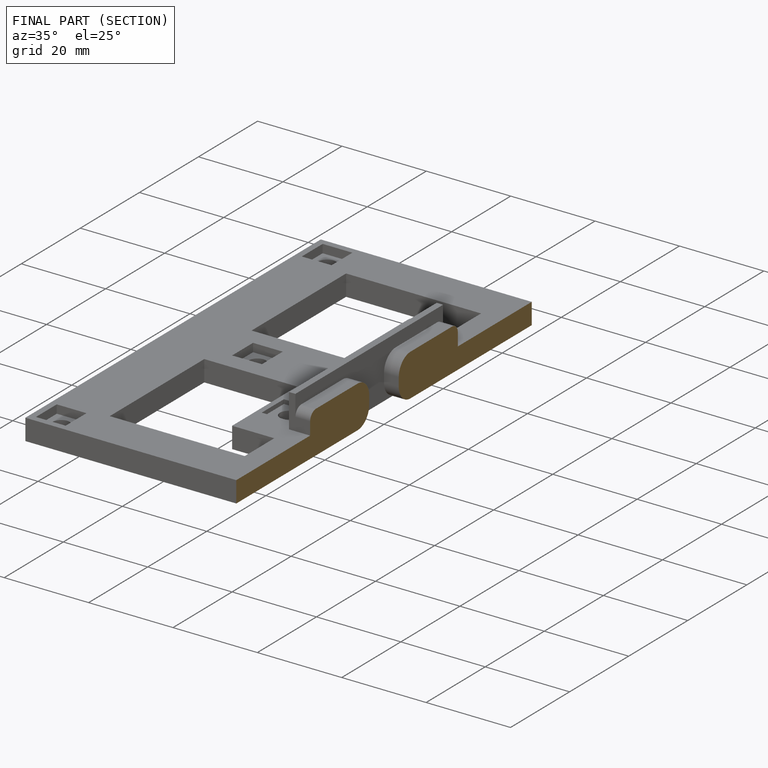
[diagram: finished part — half-section view (interior)]
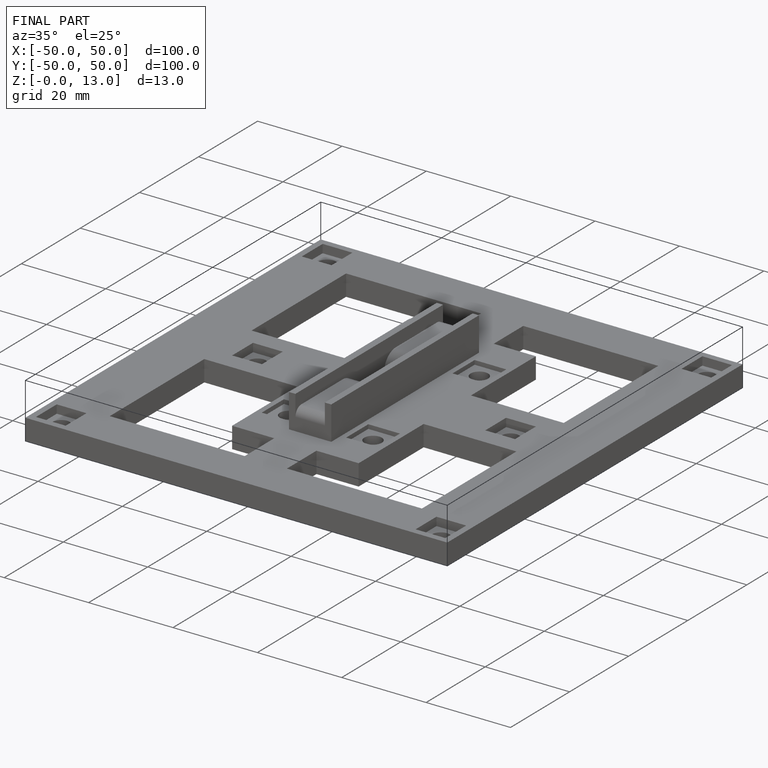
[diagram: finished part — iso view with bounding-box wireframe]
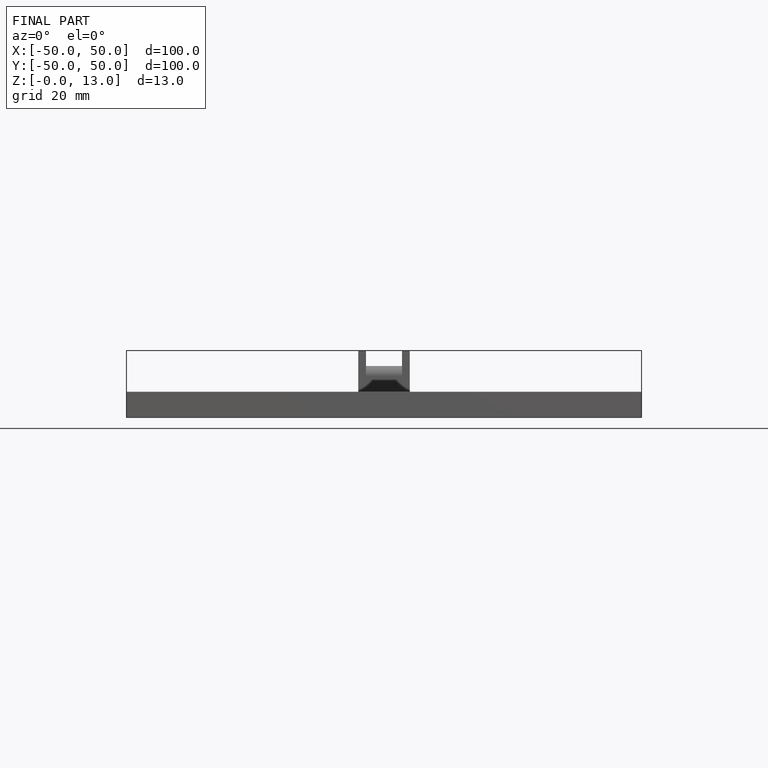
[diagram: finished part — front view with bounding-box wireframe]
